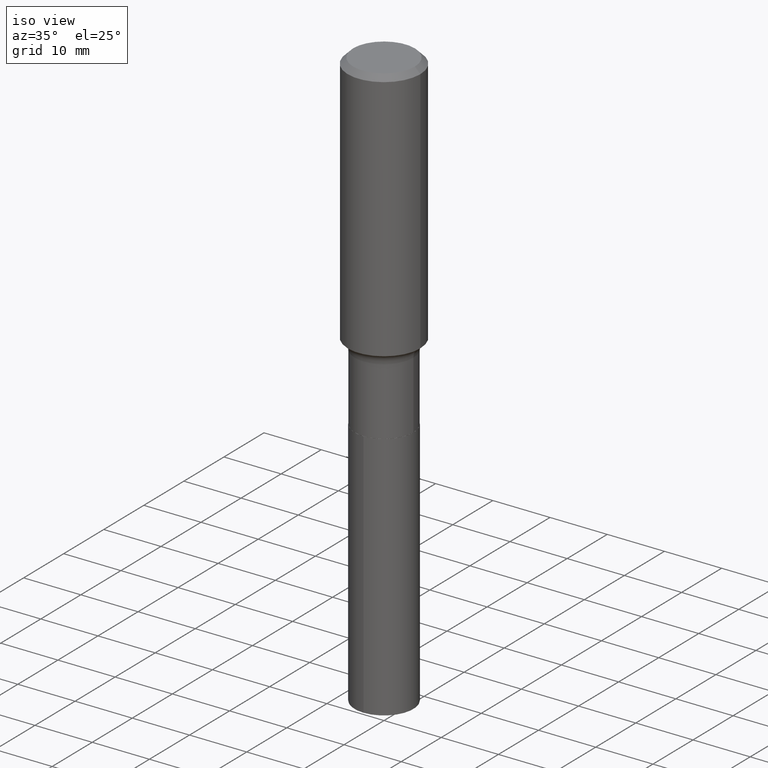
[diagram: clean part render]
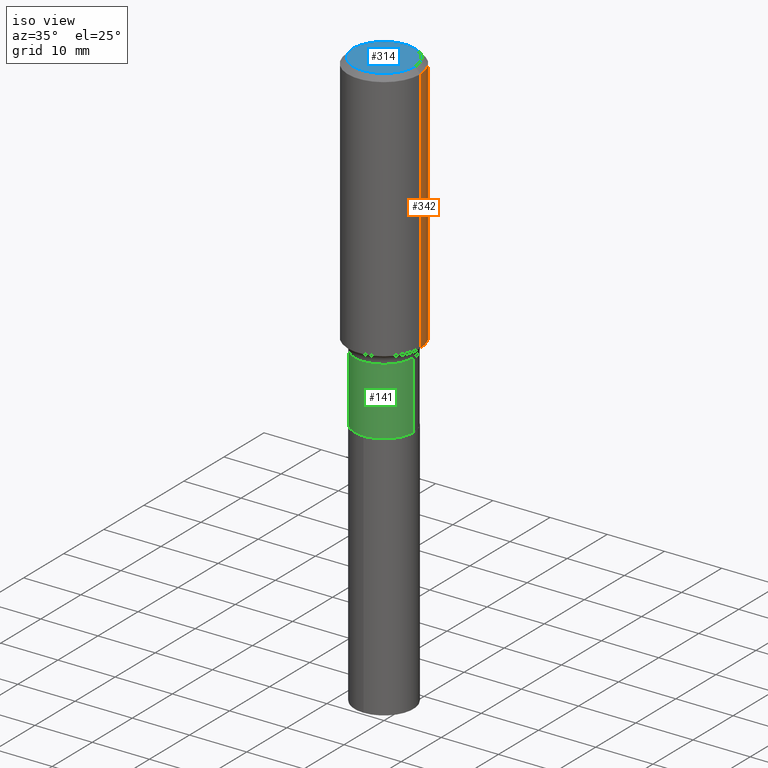
[diagram: same view with three faces highlighted in distinct colors, each labeled with its STEP entity id]
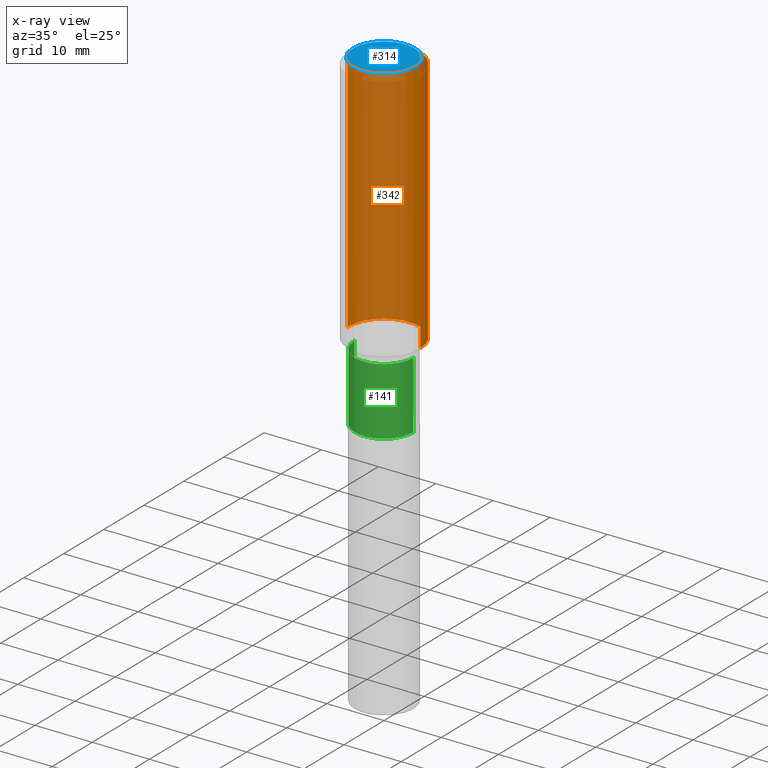
[diagram: x-ray of the same camera — body ghosted, the three highlighted faces saturated]
A machine part, iso view with three faces highlighted in distinct colors.
The next image is the same camera in x-ray (body ghosted, the three faces saturated) — at least one of them is partly hidden behind the body in this view.
Their STEP definitions:

[orange] entity #342 — the highlighted cylindrical surface (partial cylindrical patch) has radius 6.35 mm, axis along (-0, 0, 1).
#19 = CIRCLE ( 'NONE', #398, 0.2500000000000000000 ) ;
#37 = CARTESIAN_POINT ( 'NONE',  ( 0.2500000000000000555, -1.745740669421567269E-15, 1.219044193948984228E-29 ) ) ;
#69 = VERTEX_POINT ( 'NONE', #383 ) ;
#101 = AXIS2_PLACEMENT_3D ( 'NONE', #491, #345, #140 ) ;
#113 = EDGE_LOOP ( 'NONE', ( #265, #433, #138, #207 ) ) ;
#115 = VERTEX_POINT ( 'NONE', #146 ) ;
#138 = ORIENTED_EDGE ( 'NONE', *, *, #307, .F. ) ;
#140 = DIRECTION ( 'NONE',  ( 1.000000000000000000, -6.982962677686265922E-15, 0.000000000000000000 ) ) ;
#146 = CARTESIAN_POINT ( 'NONE',  ( 0.2500000000000002220, -7.829297754221866861E-15, -1.742399999999999949 ) ) ;
#147 = VERTEX_POINT ( 'NONE', #194 ) ;
#163 = CIRCLE ( 'NONE', #101, 0.2500000000000001665 ) ;
#168 = EDGE_CURVE ( 'NONE', #115, #147, #163, .T. ) ;
#170 = LINE ( 'NONE', #492, #464 ) ;
#185 = DIRECTION ( 'NONE',  ( -2.445468806185136877E-29, 3.491481338843145188E-15, 1.000000000000000000 ) ) ;
#194 = CARTESIAN_POINT ( 'NONE',  ( -0.2500000000000002220, -4.307200245400044985E-15, -1.742399999999999949 ) ) ;
#205 = VECTOR ( 'NONE', #185, 39.37007874015748143 ) ;
#207 = ORIENTED_EDGE ( 'NONE', *, *, #454, .F. ) ;
#211 = DIRECTION ( 'NONE',  ( -2.445468806185136597E-29, 3.491481338843145583E-15, 1.000000000000000000 ) ) ;
#246 = CARTESIAN_POINT ( 'NONE',  ( 9.170508023194324245E-31, -1.309305502066188567E-16, -0.03750000000000025535 ) ) ;
#257 = DIRECTION ( 'NONE',  ( -2.445468806185136877E-29, 3.491481338843145188E-15, 1.000000000000000000 ) ) ;
#262 = DIRECTION ( 'NONE',  ( 1.000000000000000000, -6.982962677686267499E-15, 4.876176775795935793E-29 ) ) ;
#265 = ORIENTED_EDGE ( 'NONE', *, *, #168, .T. ) ;
#285 = DIRECTION ( 'NONE',  ( -2.445468806185136597E-29, 3.491481338843145583E-15, 1.000000000000000000 ) ) ;
#294 = CYLINDRICAL_SURFACE ( 'NONE', #406, 0.2500000000000000555 ) ;
#307 = EDGE_CURVE ( 'NONE', #482, #69, #19, .T. ) ;
#342 = ADVANCED_FACE ( 'NONE', ( #479 ), #294, .T. ) ;
#345 = DIRECTION ( 'NONE',  ( -2.445468806185136597E-29, 3.491481338843145583E-15, 1.000000000000000000 ) ) ;
#357 = DIRECTION ( 'NONE',  ( 1.000000000000000000, -6.982962677686266711E-15, 0.000000000000000000 ) ) ;
#383 = CARTESIAN_POINT ( 'NONE',  ( -0.2500000000000000000, -1.330886978103206602E-15, -0.03750000000000025535 ) ) ;
#398 = AXIS2_PLACEMENT_3D ( 'NONE', #246, #285, #357 ) ;
#405 = LINE ( 'NONE', #37, #205 ) ;
#406 = AXIS2_PLACEMENT_3D ( 'NONE', #440, #211, #262 ) ;
#414 = EDGE_CURVE ( 'NONE', #147, #69, #170, .T. ) ;
#427 = CARTESIAN_POINT ( 'NONE',  ( 0.2500000000000000000, -1.876671219628185362E-15, -0.03750000000000025535 ) ) ;
#433 = ORIENTED_EDGE ( 'NONE', *, *, #414, .T. ) ;
#440 = CARTESIAN_POINT ( 'NONE',  ( 0.000000000000000000, 0.000000000000000000, 0.000000000000000000 ) ) ;
#454 = EDGE_CURVE ( 'NONE', #115, #482, #405, .T. ) ;
#464 = VECTOR ( 'NONE', #257, 39.37007874015748143 ) ;
#479 = FACE_OUTER_BOUND ( 'NONE', #113, .T. ) ;
#482 = VERTEX_POINT ( 'NONE', #427 ) ;
#491 = CARTESIAN_POINT ( 'NONE',  ( 4.260984847896982161E-29, -6.083557084800297028E-15, -1.742399999999999949 ) ) ;
#492 = CARTESIAN_POINT ( 'NONE',  ( -0.2500000000000000555, 1.776356839400250859E-15, -1.229733772563726866E-29 ) ) ;

[blue] entity #314 — the highlighted planar face has unit normal (0, -0, -1).
#2 = CIRCLE ( 'NONE', #10, 0.2124999999999999944 ) ;
#10 = AXIS2_PLACEMENT_3D ( 'NONE', #323, #476, #123 ) ;
#29 = CARTESIAN_POINT ( 'NONE',  ( -1.591006383764330940E-46, 2.271535455632768948E-32, 6.505936120470318766E-18 ) ) ;
#78 = AXIS2_PLACEMENT_3D ( 'NONE', #29, #227, #260 ) ;
#85 = VERTEX_POINT ( 'NONE', #142 ) ;
#88 = CARTESIAN_POINT ( 'NONE',  ( 0.2124999999999999944, -1.651955437087975937E-15, 6.505936120481282700E-18 ) ) ;
#89 = CIRCLE ( 'NONE', #78, 0.2124999999999999944 ) ;
#123 = DIRECTION ( 'NONE',  ( 1.000000000000000000, -6.982962677686266711E-15, 4.876376119033268190E-29 ) ) ;
#142 = CARTESIAN_POINT ( 'NONE',  ( -0.2124999999999999944, 1.549344844111639638E-15, 6.505936120459713055E-18 ) ) ;
#154 = PLANE ( 'NONE',  #298 ) ;
#197 = FACE_OUTER_BOUND ( 'NONE', #485, .T. ) ;
#227 = DIRECTION ( 'NONE',  ( -2.445468806185136597E-29, 3.491481338843145583E-15, 1.000000000000000000 ) ) ;
#260 = DIRECTION ( 'NONE',  ( 1.000000000000000000, -6.982962677686266711E-15, 4.876376119033268190E-29 ) ) ;
#298 = AXIS2_PLACEMENT_3D ( 'NONE', #467, #329, #403 ) ;
#314 = ADVANCED_FACE ( 'NONE', ( #197 ), #154, .F. ) ;
#323 = CARTESIAN_POINT ( 'NONE',  ( -1.591006383764330940E-46, 2.271535455632768948E-32, 6.505936120470318766E-18 ) ) ;
#329 = DIRECTION ( 'NONE',  ( 2.438088387897960049E-29, -3.491481338843145188E-15, -1.000000000000000000 ) ) ;
#334 = EDGE_CURVE ( 'NONE', #85, #337, #2, .T. ) ;
#337 = VERTEX_POINT ( 'NONE', #88 ) ;
#403 = DIRECTION ( 'NONE',  ( -1.000000000000000000, 6.982962677686265922E-15, -4.876176775795935793E-29 ) ) ;
#409 = ORIENTED_EDGE ( 'NONE', *, *, #334, .T. ) ;
#424 = EDGE_CURVE ( 'NONE', #337, #85, #89, .T. ) ;
#467 = CARTESIAN_POINT ( 'NONE',  ( -7.955031918821654702E-47, 1.135767727816384474E-32, 3.252968060235159383E-18 ) ) ;
#471 = ORIENTED_EDGE ( 'NONE', *, *, #424, .T. ) ;
#476 = DIRECTION ( 'NONE',  ( -2.445468806185136597E-29, 3.491481338843145583E-15, 1.000000000000000000 ) ) ;
#485 = EDGE_LOOP ( 'NONE', ( #409, #471 ) ) ;

[green] entity #141 — the highlighted cylindrical surface (edge-blend (fillet) strip) has radius 5.1308 mm, axis along (-0, 0, 1).
#1 = DIRECTION ( 'NONE',  ( -2.445468806185136877E-29, 3.491481338843145188E-15, 1.000000000000000000 ) ) ;
#36 = ORIENTED_EDGE ( 'NONE', *, *, #160, .F. ) ;
#42 = LINE ( 'NONE', #98, #415 ) ;
#43 = EDGE_CURVE ( 'NONE', #324, #372, #386, .T. ) ;
#68 = DIRECTION ( 'NONE',  ( -2.445468806185136597E-29, 3.491481338843145583E-15, 1.000000000000000000 ) ) ;
#75 = CYLINDRICAL_SURFACE ( 'NONE', #397, 0.2019999999999999851 ) ;
#87 = VECTOR ( 'NONE', #306, 39.37007874015748143 ) ;
#98 = CARTESIAN_POINT ( 'NONE',  ( -0.2019999999999999851, 1.435296326235402270E-15, -9.936248882314910004E-30 ) ) ;
#117 = AXIS2_PLACEMENT_3D ( 'NONE', #377, #339, #309 ) ;
#118 = EDGE_CURVE ( 'NONE', #212, #378, #42, .T. ) ;
#122 = DIRECTION ( 'NONE',  ( -2.445468806185136597E-29, 3.491481338843145583E-15, 1.000000000000000000 ) ) ;
#141 = ADVANCED_FACE ( 'NONE', ( #419 ), #75, .T. ) ;
#160 = EDGE_CURVE ( 'NONE', #378, #372, #282, .T. ) ;
#187 = CARTESIAN_POINT ( 'NONE',  ( 0.000000000000000000, 0.000000000000000000, 0.000000000000000000 ) ) ;
#199 = EDGE_LOOP ( 'NONE', ( #291, #263, #318, #36 ) ) ;
#212 = VERTEX_POINT ( 'NONE', #461 ) ;
#215 = AXIS2_PLACEMENT_3D ( 'NONE', #353, #122, #465 ) ;
#219 = CARTESIAN_POINT ( 'NONE',  ( -0.2019999999999999574, -5.709845659640153480E-15, -1.814400000000000235 ) ) ;
#232 = DIRECTION ( 'NONE',  ( 1.000000000000000000, -6.982962677686267499E-15, 4.876176775795936353E-29 ) ) ;
#263 = ORIENTED_EDGE ( 'NONE', *, *, #272, .T. ) ;
#272 = EDGE_CURVE ( 'NONE', #212, #324, #276, .T. ) ;
#276 = CIRCLE ( 'NONE', #215, 0.2020000000000000129 ) ;
#282 = CIRCLE ( 'NONE', #117, 0.2019999999999999574 ) ;
#291 = ORIENTED_EDGE ( 'NONE', *, *, #118, .F. ) ;
#296 = CARTESIAN_POINT ( 'NONE',  ( 0.2019999999999999574, -7.745502202089629956E-15, -1.814400000000000235 ) ) ;
#306 = DIRECTION ( 'NONE',  ( -2.445468806185136877E-29, 3.491481338843145188E-15, 1.000000000000000000 ) ) ;
#309 = DIRECTION ( 'NONE',  ( 1.000000000000000000, -6.982962677686266711E-15, 0.000000000000000000 ) ) ;
#318 = ORIENTED_EDGE ( 'NONE', *, *, #43, .T. ) ;
#324 = VERTEX_POINT ( 'NONE', #445 ) ;
#339 = DIRECTION ( 'NONE',  ( -2.445468806185136597E-29, 3.491481338843145583E-15, 1.000000000000000000 ) ) ;
#353 = CARTESIAN_POINT ( 'NONE',  ( 5.572000674892834695E-29, -7.955340230554108096E-15, -2.278500000000000192 ) ) ;
#372 = VERTEX_POINT ( 'NONE', #296 ) ;
#377 = CARTESIAN_POINT ( 'NONE',  ( 4.437058601942312503E-29, -6.334943741197003797E-15, -1.814400000000000235 ) ) ;
#378 = VERTEX_POINT ( 'NONE', #219 ) ;
#386 = LINE ( 'NONE', #459, #87 ) ;
#397 = AXIS2_PLACEMENT_3D ( 'NONE', #187, #68, #232 ) ;
#415 = VECTOR ( 'NONE', #1, 39.37007874015748143 ) ;
#419 = FACE_OUTER_BOUND ( 'NONE', #199, .T. ) ;
#445 = CARTESIAN_POINT ( 'NONE',  ( 0.2020000000000000129, -9.365898691446733467E-15, -2.278500000000000192 ) ) ;
#459 = CARTESIAN_POINT ( 'NONE',  ( 0.2019999999999999851, -1.410558460892625962E-15, 9.849877087107791198E-30 ) ) ;
#461 = CARTESIAN_POINT ( 'NONE',  ( -0.2020000000000000129, -5.709845659640153480E-15, -2.278500000000000192 ) ) ;
#465 = DIRECTION ( 'NONE',  ( 1.000000000000000000, -6.982962677686265133E-15, 0.000000000000000000 ) ) ;